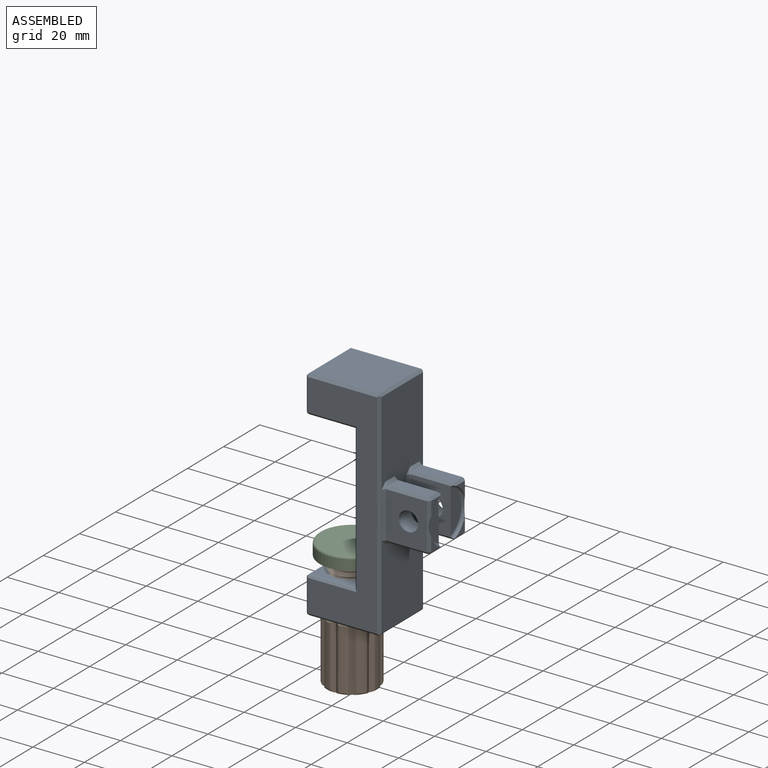
[diagram: assembled view]
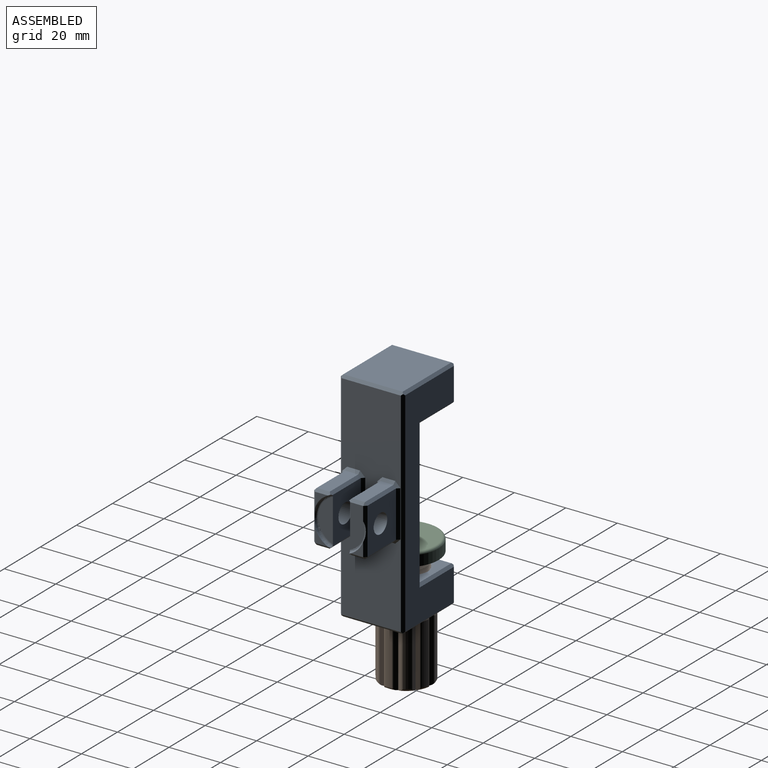
[diagram: assembled view, second angle]
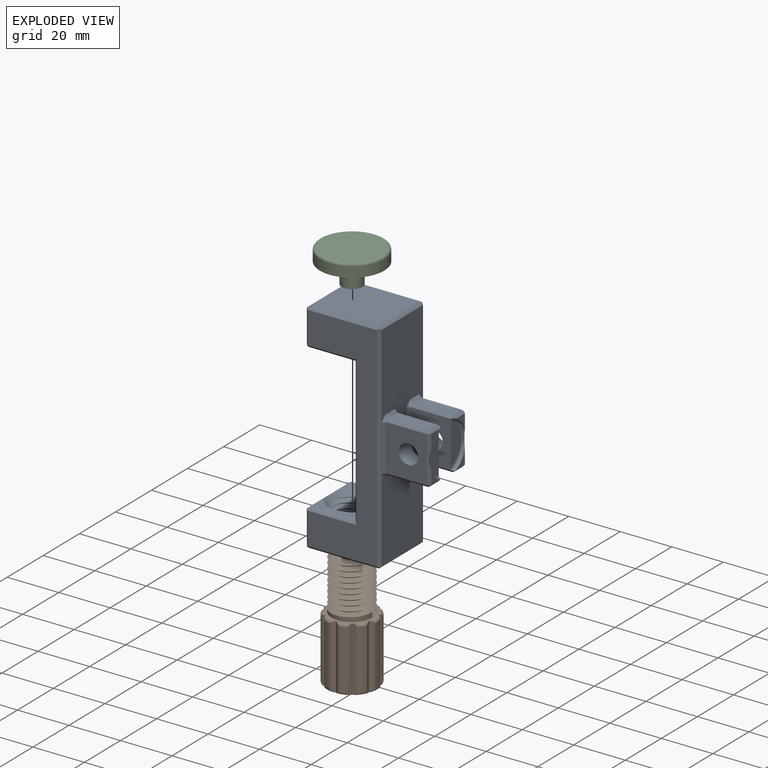
[diagram: exploded view]
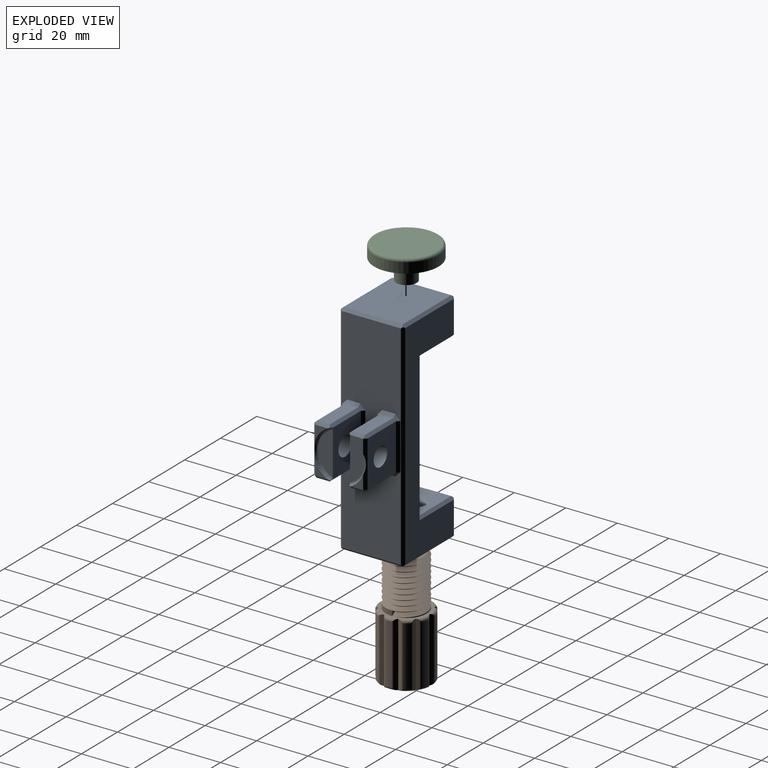
[diagram: exploded view, second angle]
ASSEMBLY  parts=3 mates=2
PART A: 97 faces, bbox 47.9x25.7x85.9 mm
  f0: plane 83x23mm, normal (1,0,0), area 1529mm2, adj f42,f50,f56,f59,f60,f63,f64,f66
  f1: cylinder r=10mm len=6.64mm, axis (1,0,0), area 2.5mm2, adj f2,f35,f55,f62
  f2: plane 5.43x4.98mm, normal (1,0,0), area 10mm2, adj f1,f55,f62
  f3: cylinder r=10mm len=6.64mm, axis (1,0,0), area 2.5mm2, adj f24,f34,f72,f79
  f4: plane 5.43x4.98mm, normal (1,0,0), area 10mm2, adj f33,f79,f85
  f5: cylinder r=6.5mm len=13mm, axis (0,0,1), area 29.5mm2, adj f16,f17,f18,f19
  f6: plane 27x23mm, normal (0,0,-1), area 368.5mm2, adj f17,f40,f48,f88,f92
  f7: plane 27x23mm, normal (0,0,1), area 621mm2, adj f44,f52,f94,f95
  f8: plane 23x12.5mm, normal (-1,0,0), area 287.5mm2, adj f45,f53,f93,f94
  f9: plane 23x22.15mm, normal (0,0,-1), area 479.3mm2, adj f43,f51,f93,f96
  f10: plane 0.41x0.17mm, normal (-1,0,0), area 0mm2, adj f11,f49,f89
  f11: plane 23x22.15mm, normal (0,0,1), area 219.4mm2, adj f10,f15,f39,f89,f90,f96
  f12: plane 22.59x12.5mm, normal (-1,0,0), area 282.3mm2, adj f46,f90,f91,f92
  f13: plane 83x27mm, normal (0,-1,0), area 1139mm2, adj f46,f47,f48,f49,f50,f51,f52,f53
  f14: plane 83x27mm, normal (0,1,0), area 1139mm2, adj f38,f39,f40,f41,f42,f43,f44,f45
  f15: cone r=6.5mm half-angle=45deg, axis (0,0,1), area 123.6mm2, adj f11,f16,f18,f19,f90
  f16: cone r=6.5mm half-angle=45deg, axis (0,0,1), area 0.8mm2, adj f5,f15,f19
  f17: cone r=6.5mm half-angle=45deg, axis (0,0,-1), area 125.8mm2, adj f5,f6,f18,f19,f92
  f18: bspline ~18.71x16.2mm, area 475.7mm2, adj f5,f15,f17,f19
  f19: bspline ~18.71x16.2mm, area 473.5mm2, adj f5,f15,f16,f17,f18
  f20: plane 15.8x5mm, normal (0,0,-1), area 79mm2, adj f78,f84,f85,f87
  f21: plane 18.02x15.72mm, normal (0,1,0), area 234.9mm2, adj f32,f34,f37,f75,f83,f87
  f22: plane 15.8x5mm, normal (0,0,1), area 79mm2, adj f71,f72,f75,f76
  f23: plane 18x15.8mm, normal (0,-1,0), area 240.2mm2, adj f37,f71,f77,f78,f79
  f24: plane 5.43x4.98mm, normal (1,0,0), area 10mm2, adj f3,f72,f79
  f25: plane 15.8x5mm, normal (0,0,-1), area 79mm2, adj f54,f55,f58,f59
  f26: plane 18x15.8mm, normal (0,1,0), area 240.2mm2, adj f36,f54,f60,f61,f62
  f27: plane 15.8x5mm, normal (0,0,1), area 79mm2, adj f61,f67,f68,f70
  f28: plane 18.02x15.72mm, normal (0,-1,0), area 234.9mm2, adj f30,f35,f36,f58,f66,f70
  f29: plane 5.43x4.98mm, normal (1,0,0), area 10mm2, adj f31,f62,f68
  f30: plane 16.71x5.66mm, normal (1,0,0), area 68.5mm2, adj f28,f35
  f31: cylinder r=10mm len=6.64mm, axis (1,0,0), area 2.5mm2, adj f29,f35,f62,f68
  f32: plane 16.71x5.66mm, normal (1,0,0), area 68.5mm2, adj f21,f34
  f33: cylinder r=10mm len=6.64mm, axis (1,0,0), area 2.5mm2, adj f4,f34,f79,f85
  f34: torus R=9mm, axis (1,0,0), area 35.3mm2, adj f3,f21,f32,f33,f72,f75,f79,f85
  f35: torus R=9mm, axis (1,0,0), area 35.3mm2, adj f1,f28,f30,f31,f55,f58,f62,f68
  f36: cylinder r=3.75mm len=7.5mm, axis (0,-1,0), area 164.9mm2, adj f26,f28
  f37: cylinder r=3.75mm len=7.5mm, axis (0,-1,0), area 164.9mm2, adj f21,f23
  f38: plane 13.5x0.71mm, normal (-0.71,0.71,0), area 13.1mm2, adj f14,f39,f40,f90,f91,f92
  f39: plane 19.5x1mm, normal (0,0.71,0.71), area 26.5mm2, adj f11,f14,f38,f41,f90
  f40: plane 28x1mm, normal (0,0.71,-0.71), area 38.9mm2, adj f6,f14,f38,f42,f88,f92
  f41: plane 58x1mm, normal (-0.71,0.71,0), area 80.6mm2, adj f14,f39,f43,f96
  f42: plane 84x1mm, normal (0.71,0.71,0), area 118.1mm2, adj f0,f14,f40,f44,f88,f95
  f43: plane 19.5x1mm, normal (0,0.71,-0.71), area 26.5mm2, adj f9,f14,f41,f45,f93
  f44: plane 28x1mm, normal (0,0.71,0.71), area 38.9mm2, adj f7,f14,f42,f45,f94,f95
  f45: plane 13.5x1mm, normal (-0.71,0.71,0), area 18.4mm2, adj f8,f14,f43,f44,f93,f94
  f46: plane 13.5x1mm, normal (-0.71,-0.71,0), area 18.4mm2, adj f12,f13,f47,f48,f90,f92
  f47: plane 19.5x0.71mm, normal (0,-0.71,0.71), area 18.9mm2, adj f13,f46,f49,f89,f90
  f48: plane 28x1mm, normal (0,-0.71,-0.71), area 38.9mm2, adj f6,f13,f46,f50,f88,f92
  f49: plane 58x1mm, normal (-0.71,-0.71,0), area 80.6mm2, adj f10,f13,f47,f51,f89,f96
  f50: plane 84x1mm, normal (0.71,-0.71,0), area 118.1mm2, adj f0,f13,f48,f52,f88,f95
  f51: plane 19.5x1mm, normal (0,-0.71,-0.71), area 26.5mm2, adj f9,f13,f49,f53,f93
  f52: plane 28x1mm, normal (0,-0.71,0.71), area 38.9mm2, adj f7,f13,f50,f53,f94,f95
  f53: plane 13.5x1mm, normal (-0.71,-0.71,0), area 18.4mm2, adj f8,f13,f51,f52,f93,f94
  f54: plane 15.8x1mm, normal (0,0.71,-0.71), area 22.3mm2, adj f25,f26,f56,f57
  f55: plane 5.7x1.01mm, normal (0.71,0,-0.71), area 7.5mm2, adj f1,f2,f25,f35,f57,f58
  f56: plane 2x2mm, normal (0.58,0.58,-0.58), area 2.6mm2, adj f0,f54,f59,f60
  f57: plane 1x1mm, normal (0.58,0.58,-0.58), area 0.9mm2, adj f54,f55,f62
  f58: plane 16.49x1mm, normal (0,-0.71,-0.71), area 22.7mm2, adj f25,f28,f35,f55,f63
  f59: plane 5x1mm, normal (0.71,0,-0.71), area 7.1mm2, adj f0,f25,f56,f63
  f60: plane 18x1mm, normal (0.71,0.71,0), area 25.5mm2, adj f0,f26,f56,f64
  f61: plane 15.8x1mm, normal (0,0.71,0.71), area 22.3mm2, adj f26,f27,f64,f65
  f62: plane 18.02x1.02mm, normal (0.71,0.71,0), area 21.2mm2, adj f1,f2,f26,f29,f31,f35,f57,f65
  f63: plane 2x2mm, normal (0.58,-0.58,-0.58), area 2.6mm2, adj f0,f58,f59,f66
  f64: plane 2x2mm, normal (0.58,0.58,0.58), area 2.6mm2, adj f0,f60,f61,f67
  f65: plane 1x1mm, normal (0.58,0.58,0.58), area 0.9mm2, adj f61,f62,f68
  f66: plane 18x1mm, normal (0.71,-0.71,0), area 25.5mm2, adj f0,f28,f63,f69
  f67: plane 5x1mm, normal (0.71,0,0.71), area 7.1mm2, adj f0,f27,f64,f69
  f68: plane 5.7x1.01mm, normal (0.71,0,0.71), area 7.5mm2, adj f27,f29,f31,f35,f65,f70
  f69: plane 2x2mm, normal (0.58,-0.58,0.58), area 2.6mm2, adj f0,f66,f67,f70
  f70: plane 16.49x1mm, normal (0,-0.71,0.71), area 22.7mm2, adj f27,f28,f35,f68,f69
  f71: plane 15.8x1mm, normal (0,-0.71,0.71), area 22.3mm2, adj f22,f23,f73,f74
  f72: plane 5.7x1.01mm, normal (0.71,0,0.71), area 7.5mm2, adj f3,f22,f24,f34,f74,f75
  f73: plane 2x2mm, normal (0.58,-0.58,0.58), area 2.6mm2, adj f0,f71,f76,f77
  f74: plane 1x1mm, normal (0.58,-0.58,0.58), area 0.9mm2, adj f71,f72,f79
  f75: plane 16.49x1mm, normal (0,0.71,0.71), area 22.7mm2, adj f21,f22,f34,f72,f80
  f76: plane 5x1mm, normal (0.71,0,0.71), area 7.1mm2, adj f0,f22,f73,f80
  f77: plane 18x1mm, normal (0.71,-0.71,0), area 25.5mm2, adj f0,f23,f73,f81
  f78: plane 15.8x1mm, normal (0,-0.71,-0.71), area 22.3mm2, adj f20,f23,f81,f82
  f79: plane 18.02x1.02mm, normal (0.71,-0.71,0), area 21.2mm2, adj f3,f4,f23,f24,f33,f34,f74,f82
  f80: plane 2x2mm, normal (0.58,0.58,0.58), area 2.6mm2, adj f0,f75,f76,f83
  f81: plane 2x2mm, normal (0.58,-0.58,-0.58), area 2.6mm2, adj f0,f77,f78,f84
  f82: plane 1x1mm, normal (0.58,-0.58,-0.58), area 0.9mm2, adj f78,f79,f85
  f83: plane 18x1mm, normal (0.71,0.71,0), area 25.5mm2, adj f0,f21,f80,f86
  f84: plane 5x1mm, normal (0.71,0,-0.71), area 7.1mm2, adj f0,f20,f81,f86
  f85: plane 5.7x1.01mm, normal (0.71,0,-0.71), area 7.5mm2, adj f4,f20,f33,f34,f82,f87
  f86: plane 2x2mm, normal (0.58,0.58,-0.58), area 2.6mm2, adj f0,f83,f84,f87
  f87: plane 16.49x1mm, normal (0,0.71,-0.71), area 22.7mm2, adj f20,f21,f34,f85,f86
  f88: plane 24x1mm, normal (0.71,0,-0.71), area 33.2mm2, adj f0,f6,f40,f42,f48,f50
  f89: plane 18.59x0.71mm, normal (0,-0.38,0.92), area 13.9mm2, adj f10,f11,f47,f49,f90
  f90: plane 24x1mm, normal (-0.71,0,0.71), area 31.7mm2, adj f11,f12,f15,f38,f39,f46,f47,f89
  f91: plane 13.09x0.71mm, normal (-0.92,0.38,0), area 9.8mm2, adj f12,f38,f90,f92
  f92: plane 24.71x1.71mm, normal (-0.71,0,-0.71), area 31.8mm2, adj f6,f12,f17,f38,f40,f46,f48,f91
  f93: plane 24x1mm, normal (-0.71,0,-0.71), area 33.2mm2, adj f8,f9,f43,f45,f51,f53
  f94: plane 24x1mm, normal (-0.71,0,0.71), area 33.2mm2, adj f7,f8,f44,f45,f52,f53
  f95: plane 24x1mm, normal (0.71,0,0.71), area 33.2mm2, adj f0,f7,f42,f44,f50,f52
  f96: cylinder r=18mm len=56mm, axis (0,0,-1), area 1397.2mm2, adj f9,f11,f41,f49
PART B: 79 faces, bbox 21.8x21.7x46.4 mm
  f0: cylinder r=10mm len=23mm, axis (0,0,-1), area 55.9mm2, adj f55,f56,f57,f58
  f1: cylinder r=10mm len=23mm, axis (0,0,-1), area 55.9mm2, adj f59,f60,f61,f62
  f2: cylinder r=10mm len=23mm, axis (0,0,-1), area 55.9mm2, adj f63,f64,f65,f66
  f3: cylinder r=10mm len=23mm, axis (0,0,-1), area 55.9mm2, adj f67,f68,f69,f70
  f4: cylinder r=10mm len=23mm, axis (0,0,-1), area 55.9mm2, adj f71,f72,f73,f74
  f5: cylinder r=10mm len=23mm, axis (0,0,-1), area 55.9mm2, adj f75,f76,f77,f78
  f6: cylinder r=10mm len=23mm, axis (0,0,-1), area 55.9mm2, adj f39,f40,f41,f42
  f7: cylinder r=10mm len=23mm, axis (0,0,-1), area 55.9mm2, adj f43,f44,f45,f46
  f8: cylinder r=10mm len=23mm, axis (0,0,-1), area 55.9mm2, adj f47,f48,f49,f50
  f9: cylinder r=10mm len=23mm, axis (0,0,-1), area 55.9mm2, adj f51,f52,f53,f54
  f10: cylinder r=7.9mm len=20mm, axis (0,0,-1), area 12.5mm2, adj f11,f13,f14,f15,f16
  f11: plane 18x18mm, normal (0,0,1), area 58.2mm2, adj f10,f17,f18,f19,f20,f21,f22,f23
  f12: plane 18x18mm, normal (0,0,-1), area 254.3mm2, adj f17,f18,f19,f20,f21,f22,f23,f24
  f13: plane 14.15x14.12mm, normal (0,0,1), area 104mm2, adj f10,f15,f16,f37
  f14: plane 1.99x1.72mm, normal (0,1,0), area 1.7mm2, adj f10,f15,f16
  f15: bspline ~20.99x18.24mm, area 856.2mm2, adj f10,f13,f14,f16
  f16: bspline ~20.33x18.24mm, area 811.9mm2, adj f10,f13,f14,f15
  f17: plane 25.1x1.27mm, normal (0.55,-0.83,0), area 34.9mm2, adj f11,f12,f18,f51,f53,f54
  f18: plane 25.1x1.27mm, normal (-0.55,-0.83,0), area 34.9mm2, adj f11,f12,f17,f47,f48,f50
  f19: plane 25.1x1.42mm, normal (0.94,-0.35,0), area 34.9mm2, adj f11,f12,f20,f47,f49,f50
  f20: plane 25.1x1.51mm, normal (0.04,-1,0), area 34.9mm2, adj f11,f12,f19,f43,f44,f46
  f21: plane 25.1x1.45mm, normal (0.96,0.27,0), area 34.9mm2, adj f11,f12,f22,f43,f45,f46
  f22: plane 25.1x1.2mm, normal (0.62,-0.78,0), area 34.9mm2, adj f11,f12,f21,f39,f40,f42
  f23: plane 25.1x1.2mm, normal (0.62,0.78,0), area 34.9mm2, adj f11,f12,f24,f39,f41,f42
  f24: plane 25.1x1.45mm, normal (0.96,-0.27,0), area 34.9mm2, adj f11,f12,f23,f76,f77,f78
  f25: plane 25.1x1.51mm, normal (0.04,1,0), area 34.9mm2, adj f11,f12,f26,f75,f76,f77
  f26: plane 25.1x1.42mm, normal (0.94,0.35,0), area 34.9mm2, adj f11,f12,f25,f71,f72,f74
  f27: plane 25.1x1.27mm, normal (-0.55,0.83,0), area 34.9mm2, adj f11,f12,f28,f71,f73,f74
  f28: plane 25.1x1.27mm, normal (0.55,0.83,0), area 34.9mm2, adj f11,f12,f27,f67,f68,f70
  f29: plane 25.1x1.42mm, normal (-0.94,0.35,0), area 34.9mm2, adj f11,f12,f30,f67,f69,f70
  f30: plane 25.1x1.51mm, normal (-0.04,1,0), area 34.9mm2, adj f11,f12,f29,f63,f64,f66
  f31: plane 25.1x1.45mm, normal (-0.96,-0.27,0), area 34.9mm2, adj f11,f12,f32,f63,f65,f66
  f32: plane 25.1x1.2mm, normal (-0.62,0.78,0), area 34.9mm2, adj f11,f12,f31,f59,f60,f62
  f33: plane 25.1x1.2mm, normal (-0.62,-0.78,0), area 34.9mm2, adj f11,f12,f34,f59,f61,f62
  f34: plane 25.1x1.45mm, normal (-0.96,0.27,0), area 34.9mm2, adj f11,f12,f33,f55,f56,f58
  f35: plane 25.1x1.51mm, normal (-0.04,-1,0), area 34.9mm2, adj f11,f12,f36,f55,f57,f58
  f36: plane 25.1x1.42mm, normal (-0.94,-0.35,0), area 34.9mm2, adj f11,f12,f35,f51,f52,f54
  f37: cylinder r=4.1mm len=8.2mm, axis (0,0,1), area 206.1mm2, adj f13,f38
  f38: plane 8.2x8.2mm, normal (0,0,1), area 52.8mm2, adj f37
  f39: torus R=9mm, axis (0,0,1), area 6.1mm2, adj f6,f12,f22,f23,f40,f41
  f40: cylinder r=1mm len=24.35mm, axis (0,0,-1), area 18.5mm2, adj f6,f22,f39,f42
  f41: cylinder r=1mm len=24.35mm, axis (0,0,-1), area 18.5mm2, adj f6,f23,f39,f42
  f42: torus R=9mm, axis (0,0,1), area 6.1mm2, adj f6,f11,f22,f23,f40,f41
  f43: torus R=9mm, axis (0,0,1), area 6.1mm2, adj f7,f12,f20,f21,f44,f45
  f44: cylinder r=1mm len=24.35mm, axis (0,0,-1), area 18.5mm2, adj f7,f20,f43,f46
  f45: cylinder r=1mm len=24.35mm, axis (0,0,-1), area 18.5mm2, adj f7,f21,f43,f46
  f46: torus R=9mm, axis (0,0,1), area 6.1mm2, adj f7,f11,f20,f21,f44,f45
  f47: torus R=9mm, axis (0,0,1), area 6.1mm2, adj f8,f12,f18,f19,f48,f49
  f48: cylinder r=1mm len=24.35mm, axis (0,0,-1), area 18.5mm2, adj f8,f18,f47,f50
  f49: cylinder r=1mm len=24.35mm, axis (0,0,-1), area 18.5mm2, adj f8,f19,f47,f50
  f50: torus R=9mm, axis (0,0,1), area 6.1mm2, adj f8,f11,f18,f19,f48,f49
  f51: torus R=9mm, axis (0,0,1), area 6.1mm2, adj f9,f12,f17,f36,f52,f53
  f52: cylinder r=1mm len=24.35mm, axis (0,0,-1), area 18.5mm2, adj f9,f36,f51,f54
  f53: cylinder r=1mm len=24.35mm, axis (0,0,-1), area 18.5mm2, adj f9,f17,f51,f54
  f54: torus R=9mm, axis (0,0,1), area 6.1mm2, adj f9,f11,f17,f36,f52,f53
  f55: torus R=9mm, axis (0,0,1), area 6.1mm2, adj f0,f12,f34,f35,f56,f57
  f56: cylinder r=1mm len=24.35mm, axis (0,0,-1), area 18.5mm2, adj f0,f34,f55,f58
  f57: cylinder r=1mm len=24.35mm, axis (0,0,-1), area 18.5mm2, adj f0,f35,f55,f58
  f58: torus R=9mm, axis (0,0,1), area 6.1mm2, adj f0,f11,f34,f35,f56,f57
  f59: torus R=9mm, axis (0,0,1), area 6.1mm2, adj f1,f12,f32,f33,f60,f61
  f60: cylinder r=1mm len=24.35mm, axis (0,0,-1), area 18.5mm2, adj f1,f32,f59,f62
  f61: cylinder r=1mm len=24.35mm, axis (0,0,-1), area 18.5mm2, adj f1,f33,f59,f62
  f62: torus R=9mm, axis (0,0,1), area 6.1mm2, adj f1,f11,f32,f33,f60,f61
  f63: torus R=9mm, axis (0,0,1), area 6.1mm2, adj f2,f12,f30,f31,f64,f65
  f64: cylinder r=1mm len=24.35mm, axis (0,0,-1), area 18.5mm2, adj f2,f30,f63,f66
  f65: cylinder r=1mm len=24.35mm, axis (0,0,-1), area 18.5mm2, adj f2,f31,f63,f66
  f66: torus R=9mm, axis (0,0,1), area 6.1mm2, adj f2,f11,f30,f31,f64,f65
  f67: torus R=9mm, axis (0,0,1), area 6.1mm2, adj f3,f12,f28,f29,f68,f69
  f68: cylinder r=1mm len=24.35mm, axis (0,0,-1), area 18.5mm2, adj f3,f28,f67,f70
  f69: cylinder r=1mm len=24.35mm, axis (0,0,-1), area 18.5mm2, adj f3,f29,f67,f70
  f70: torus R=9mm, axis (0,0,1), area 6.1mm2, adj f3,f11,f28,f29,f68,f69
  f71: torus R=9mm, axis (0,0,1), area 6.1mm2, adj f4,f12,f26,f27,f72,f73
  f72: cylinder r=1mm len=24.35mm, axis (0,0,-1), area 18.5mm2, adj f4,f26,f71,f74
  f73: cylinder r=1mm len=24.35mm, axis (0,0,-1), area 18.5mm2, adj f4,f27,f71,f74
  f74: torus R=9mm, axis (0,0,1), area 6.1mm2, adj f4,f11,f26,f27,f72,f73
  f75: cylinder r=1mm len=24.35mm, axis (0,0,-1), area 18.5mm2, adj f5,f25,f76,f77
  f76: torus R=9mm, axis (0,0,1), area 6.1mm2, adj f5,f11,f24,f25,f75,f78
  f77: torus R=9mm, axis (0,0,1), area 6.1mm2, adj f5,f12,f24,f25,f75,f78
  f78: cylinder r=1mm len=24.35mm, axis (0,0,-1), area 18.5mm2, adj f5,f24,f76,f77
PART C: 6 faces, bbox 27.1x27.1x13 mm
  f0: cylinder r=12.5mm len=25mm, axis (0,0,-1), area 314.2mm2, adj f2,f5
  f1: plane 23x23mm, normal (0,0,1), area 415.5mm2, adj f5
  f2: plane 25x25mm, normal (0,0,-1), area 440.6mm2, adj f0,f3
  f3: cylinder r=4mm len=8mm, axis (0,0,1), area 201.1mm2, adj f2,f4
  f4: plane 8x8mm, normal (0,0,-1), area 50.3mm2, adj f3
  f5: torus R=11.5mm, axis (0,0,1), area 119.8mm2, adj f0,f1
PLACE A t=(22.71,27.07,27.79)mm
PLACE B t=(17.71,14.57,-40.58)mm
PLACE C t=(17.71,14.57,-90.58)mm
MATE fastened C.f3 <-> B.f37  axis (0,0,-1) through (17.71,14.57,-3.58)mm
MATE slider A.f5 <-> B.f37  axis (0,0,1) through (17.71,14.57,-0.21)mm
